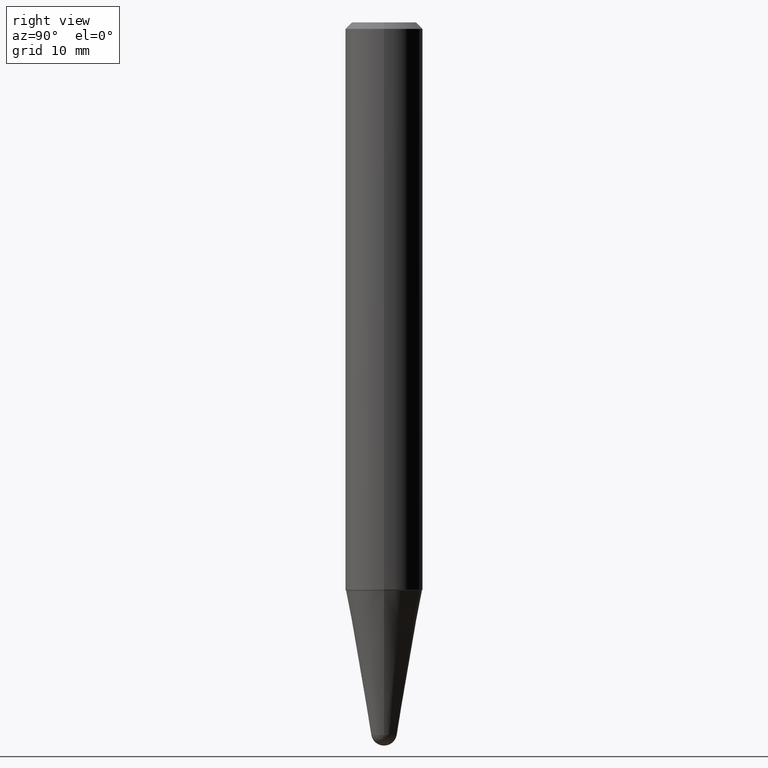
[diagram: clean part render]
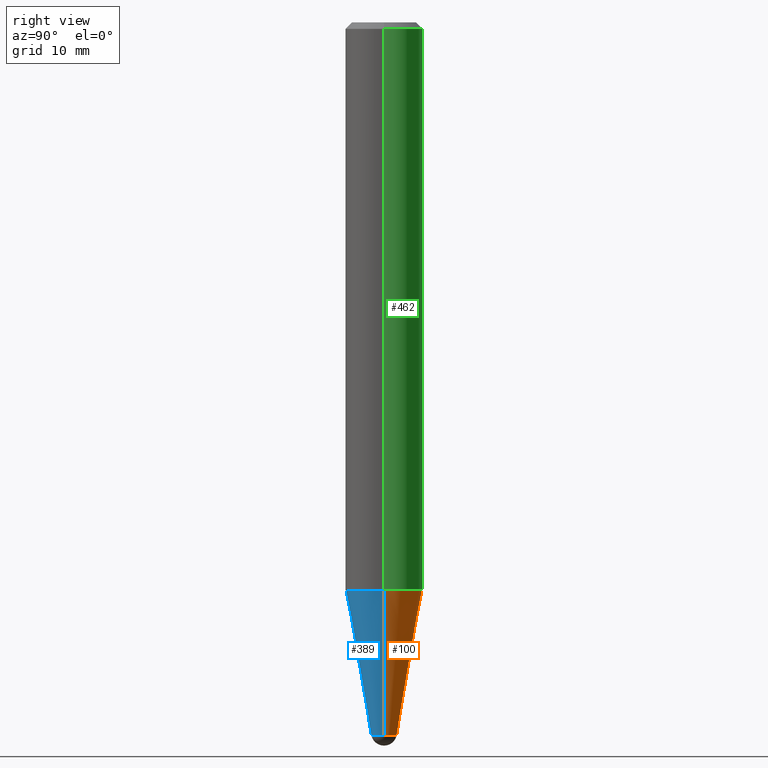
[diagram: same view with three faces highlighted in distinct colors, each labeled with its STEP entity id]
A machine part, right view with three faces highlighted in distinct colors.
Their STEP definitions:

[orange] entity #100 — the highlighted conical surface has half-angle 10 deg.
#1 = EDGE_LOOP ( 'NONE', ( #403, #85, #121, #433, #364 ) ) ;
#23 = CARTESIAN_POINT ( 'NONE',  ( 0.06155048456326323025, -1.246966492451259664E-14, -3.448353011104182908 ) ) ;
#28 = CARTESIAN_POINT ( 'NONE',  ( 8.432839721369867924E-29, -1.203986018801382488E-14, -3.448353011104182908 ) ) ;
#44 = AXIS2_PLACEMENT_3D ( 'NONE', #89, #233, #204 ) ;
#85 = ORIENTED_EDGE ( 'NONE', *, *, #322, .T. ) ;
#87 = VERTEX_POINT ( 'NONE', #240 ) ;
#89 = CARTESIAN_POINT ( 'NONE',  ( 8.432839721369867924E-29, -1.203986018801382488E-14, -3.448353011104182908 ) ) ;
#100 = ADVANCED_FACE ( 'NONE', ( #375 ), #244, .T. ) ;
#108 = CARTESIAN_POINT ( 'NONE',  ( -0.06155048456326323025, -1.160251769112441577E-14, -3.448353011104182908 ) ) ;
#111 = DIRECTION ( 'NONE',  ( -2.445468806185136597E-29, 3.491481338843145583E-15, 1.000000000000000000 ) ) ;
#115 = AXIS2_PLACEMENT_3D ( 'NONE', #167, #111, #183 ) ;
#121 = ORIENTED_EDGE ( 'NONE', *, *, #287, .F. ) ;
#138 = LINE ( 'NONE', #23, #313 ) ;
#144 = CARTESIAN_POINT ( 'NONE',  ( 4.298047364988568595E-16, 0.06155048456325129536, -3.448353011104182908 ) ) ;
#146 = DIRECTION ( 'NONE',  ( -2.445468806185136597E-29, 3.491481338843145583E-15, 1.000000000000000000 ) ) ;
#156 = EDGE_CURVE ( 'NONE', #355, #87, #138, .T. ) ;
#167 = CARTESIAN_POINT ( 'NONE',  ( 8.432839721369867924E-29, -1.203986018801382488E-14, -3.448353011104182908 ) ) ;
#177 = CIRCLE ( 'NONE', #379, 0.06155048456326323025 ) ;
#183 = DIRECTION ( 'NONE',  ( 1.000000000000000000, -6.982962677686276177E-15, 0.000000000000000000 ) ) ;
#197 = VERTEX_POINT ( 'NONE', #269 ) ;
#202 = VERTEX_POINT ( 'NONE', #377 ) ;
#204 = DIRECTION ( 'NONE',  ( 1.000000000000000000, -6.982962677686276177E-15, 0.000000000000000000 ) ) ;
#221 = CARTESIAN_POINT ( 'NONE',  ( 6.725039217009124520E-29, -9.601573681818649859E-15, -2.750000000000000000 ) ) ;
#233 = DIRECTION ( 'NONE',  ( -2.445468806185136597E-29, 3.491481338843145583E-15, 1.000000000000000000 ) ) ;
#240 = CARTESIAN_POINT ( 'NONE',  ( 0.1846889624799289975, -1.089124981379659235E-14, -2.750000000000000000 ) ) ;
#244 = CONICAL_SURFACE ( 'NONE', #44, 0.06155048456326323025, 0.1745329251994330311 ) ;
#249 = DIRECTION ( 'NONE',  ( -0.1736481776669304145, 4.672282404182340767E-15, 0.9848077530122080203 ) ) ;
#251 = EDGE_CURVE ( 'NONE', #430, #202, #411, .T. ) ;
#269 = CARTESIAN_POINT ( 'NONE',  ( -0.1846889624799289975, -8.289279675166815415E-15, -2.750000000000000000 ) ) ;
#275 = AXIS2_PLACEMENT_3D ( 'NONE', #221, #146, #454 ) ;
#287 = EDGE_CURVE ( 'NONE', #87, #197, #315, .T. ) ;
#288 = CARTESIAN_POINT ( 'NONE',  ( 0.06155048456326323025, -1.168045736915459528E-14, -3.448353011104182908 ) ) ;
#313 = VECTOR ( 'NONE', #446, 39.37007874015748854 ) ;
#315 = CIRCLE ( 'NONE', #275, 0.1846889624799289975 ) ;
#320 = DIRECTION ( 'NONE',  ( -2.445468806185136597E-29, 3.491481338843145583E-15, 1.000000000000000000 ) ) ;
#322 = EDGE_CURVE ( 'NONE', #202, #197, #459, .T. ) ;
#355 = VERTEX_POINT ( 'NONE', #288 ) ;
#364 = ORIENTED_EDGE ( 'NONE', *, *, #400, .T. ) ;
#375 = FACE_OUTER_BOUND ( 'NONE', #1, .T. ) ;
#377 = CARTESIAN_POINT ( 'NONE',  ( -0.06155048456326323025, -9.945898683145615595E-15, -3.448353011104182908 ) ) ;
#379 = AXIS2_PLACEMENT_3D ( 'NONE', #28, #320, #457 ) ;
#400 = EDGE_CURVE ( 'NONE', #355, #430, #177, .T. ) ;
#403 = ORIENTED_EDGE ( 'NONE', *, *, #251, .T. ) ;
#404 = VECTOR ( 'NONE', #249, 39.37007874015748854 ) ;
#411 = CIRCLE ( 'NONE', #115, 0.06155048456326323025 ) ;
#430 = VERTEX_POINT ( 'NONE', #144 ) ;
#433 = ORIENTED_EDGE ( 'NONE', *, *, #156, .F. ) ;
#446 = DIRECTION ( 'NONE',  ( 0.1736481776669304145, 2.225859148293765253E-15, 0.9848077530122080203 ) ) ;
#454 = DIRECTION ( 'NONE',  ( 1.000000000000000000, -6.982962677686262766E-15, 0.000000000000000000 ) ) ;
#457 = DIRECTION ( 'NONE',  ( 1.000000000000000000, -6.982962677686276177E-15, 0.000000000000000000 ) ) ;
#459 = LINE ( 'NONE', #108, #404 ) ;

[blue] entity #389 — the highlighted conical surface has half-angle 10 deg.
#7 = CONICAL_SURFACE ( 'NONE', #165, 0.06155048456326323025, 0.1745329251994330311 ) ;
#20 = DIRECTION ( 'NONE',  ( 1.000000000000000000, -6.982962677686276177E-15, 0.000000000000000000 ) ) ;
#23 = CARTESIAN_POINT ( 'NONE',  ( 0.06155048456326323025, -1.246966492451259664E-14, -3.448353011104182908 ) ) ;
#34 = CIRCLE ( 'NONE', #104, 0.06155048456326323025 ) ;
#38 = ORIENTED_EDGE ( 'NONE', *, *, #322, .F. ) ;
#53 = CIRCLE ( 'NONE', #120, 0.06155048456326323025 ) ;
#81 = CIRCLE ( 'NONE', #456, 0.1846889624799289975 ) ;
#87 = VERTEX_POINT ( 'NONE', #240 ) ;
#91 = CARTESIAN_POINT ( 'NONE',  ( -4.373424968893222302E-16, -0.06155048456327496392, -3.448353011104182908 ) ) ;
#102 = DIRECTION ( 'NONE',  ( 1.000000000000000000, -6.982962677686276177E-15, 0.000000000000000000 ) ) ;
#104 = AXIS2_PLACEMENT_3D ( 'NONE', #385, #285, #151 ) ;
#108 = CARTESIAN_POINT ( 'NONE',  ( -0.06155048456326323025, -1.160251769112441577E-14, -3.448353011104182908 ) ) ;
#120 = AXIS2_PLACEMENT_3D ( 'NONE', #170, #212, #20 ) ;
#124 = VERTEX_POINT ( 'NONE', #91 ) ;
#126 = EDGE_LOOP ( 'NONE', ( #38, #359, #367, #195, #192 ) ) ;
#130 = EDGE_CURVE ( 'NONE', #197, #87, #81, .T. ) ;
#138 = LINE ( 'NONE', #23, #313 ) ;
#151 = DIRECTION ( 'NONE',  ( 1.000000000000000000, -6.982962677686276177E-15, 0.000000000000000000 ) ) ;
#156 = EDGE_CURVE ( 'NONE', #355, #87, #138, .T. ) ;
#165 = AXIS2_PLACEMENT_3D ( 'NONE', #319, #453, #102 ) ;
#170 = CARTESIAN_POINT ( 'NONE',  ( 8.432839721369867924E-29, -1.203986018801382488E-14, -3.448353011104182908 ) ) ;
#173 = EDGE_CURVE ( 'NONE', #202, #124, #53, .T. ) ;
#174 = CARTESIAN_POINT ( 'NONE',  ( 6.725039217009124520E-29, -9.601573681818649859E-15, -2.750000000000000000 ) ) ;
#192 = ORIENTED_EDGE ( 'NONE', *, *, #130, .F. ) ;
#195 = ORIENTED_EDGE ( 'NONE', *, *, #156, .T. ) ;
#197 = VERTEX_POINT ( 'NONE', #269 ) ;
#202 = VERTEX_POINT ( 'NONE', #377 ) ;
#212 = DIRECTION ( 'NONE',  ( -2.445468806185136597E-29, 3.491481338843145583E-15, 1.000000000000000000 ) ) ;
#234 = DIRECTION ( 'NONE',  ( 1.000000000000000000, -6.982962677686262766E-15, 0.000000000000000000 ) ) ;
#240 = CARTESIAN_POINT ( 'NONE',  ( 0.1846889624799289975, -1.089124981379659235E-14, -2.750000000000000000 ) ) ;
#249 = DIRECTION ( 'NONE',  ( -0.1736481776669304145, 4.672282404182340767E-15, 0.9848077530122080203 ) ) ;
#269 = CARTESIAN_POINT ( 'NONE',  ( -0.1846889624799289975, -8.289279675166815415E-15, -2.750000000000000000 ) ) ;
#285 = DIRECTION ( 'NONE',  ( -2.445468806185136597E-29, 3.491481338843145583E-15, 1.000000000000000000 ) ) ;
#288 = CARTESIAN_POINT ( 'NONE',  ( 0.06155048456326323025, -1.168045736915459528E-14, -3.448353011104182908 ) ) ;
#313 = VECTOR ( 'NONE', #446, 39.37007874015748854 ) ;
#319 = CARTESIAN_POINT ( 'NONE',  ( 8.432839721369867924E-29, -1.203986018801382488E-14, -3.448353011104182908 ) ) ;
#322 = EDGE_CURVE ( 'NONE', #202, #197, #459, .T. ) ;
#353 = EDGE_CURVE ( 'NONE', #124, #355, #34, .T. ) ;
#355 = VERTEX_POINT ( 'NONE', #288 ) ;
#359 = ORIENTED_EDGE ( 'NONE', *, *, #173, .T. ) ;
#367 = ORIENTED_EDGE ( 'NONE', *, *, #353, .T. ) ;
#377 = CARTESIAN_POINT ( 'NONE',  ( -0.06155048456326323025, -9.945898683145615595E-15, -3.448353011104182908 ) ) ;
#385 = CARTESIAN_POINT ( 'NONE',  ( 8.432839721369867924E-29, -1.203986018801382488E-14, -3.448353011104182908 ) ) ;
#389 = ADVANCED_FACE ( 'NONE', ( #418 ), #7, .T. ) ;
#404 = VECTOR ( 'NONE', #249, 39.37007874015748854 ) ;
#417 = DIRECTION ( 'NONE',  ( -2.445468806185136597E-29, 3.491481338843145583E-15, 1.000000000000000000 ) ) ;
#418 = FACE_OUTER_BOUND ( 'NONE', #126, .T. ) ;
#446 = DIRECTION ( 'NONE',  ( 0.1736481776669304145, 2.225859148293765253E-15, 0.9848077530122080203 ) ) ;
#453 = DIRECTION ( 'NONE',  ( -2.445468806185136597E-29, 3.491481338843145583E-15, 1.000000000000000000 ) ) ;
#456 = AXIS2_PLACEMENT_3D ( 'NONE', #174, #417, #234 ) ;
#459 = LINE ( 'NONE', #108, #404 ) ;

[green] entity #462 — the highlighted cylindrical surface (partial cylindrical patch) has radius 4.7625 mm, axis along (-0, 0, 1).
#13 = VERTEX_POINT ( 'NONE', #128 ) ;
#24 = LINE ( 'NONE', #314, #49 ) ;
#27 = DIRECTION ( 'NONE',  ( 1.000000000000000000, -6.982962677686269866E-15, 0.000000000000000000 ) ) ;
#30 = CIRCLE ( 'NONE', #297, 0.1874999999999999722 ) ;
#37 = CYLINDRICAL_SURFACE ( 'NONE', #97, 0.1875000000000001943 ) ;
#41 = DIRECTION ( 'NONE',  ( 1.000000000000000000, -6.982962677686265922E-15, 4.852736867747361162E-29 ) ) ;
#42 = ORIENTED_EDGE ( 'NONE', *, *, #139, .T. ) ;
#48 = ORIENTED_EDGE ( 'NONE', *, *, #339, .T. ) ;
#49 = VECTOR ( 'NONE', #241, 39.37007874015748143 ) ;
#52 = LINE ( 'NONE', #172, #449 ) ;
#65 = AXIS2_PLACEMENT_3D ( 'NONE', #387, #324, #27 ) ;
#67 = CARTESIAN_POINT ( 'NONE',  ( -1.450455682483482035E-44, 2.070866303999251778E-30, 5.931196827434296760E-16 ) ) ;
#94 = CARTESIAN_POINT ( 'NONE',  ( 0.1875000000000003608, -1.089557328910965200E-14, -2.745616217504903922 ) ) ;
#97 = AXIS2_PLACEMENT_3D ( 'NONE', #67, #424, #41 ) ;
#99 = DIRECTION ( 'NONE',  ( -2.445468806185136877E-29, 3.491481338843145188E-15, 1.000000000000000000 ) ) ;
#128 = CARTESIAN_POINT ( 'NONE',  ( 0.1874999999999999722, -1.418414293905023123E-15, -0.03125000000000003469 ) ) ;
#137 = DIRECTION ( 'NONE',  ( 1.000000000000000000, -6.982962677686266711E-15, 0.000000000000000000 ) ) ;
#139 = EDGE_CURVE ( 'NONE', #394, #226, #52, .T. ) ;
#142 = EDGE_CURVE ( 'NONE', #163, #13, #24, .T. ) ;
#158 = EDGE_LOOP ( 'NONE', ( #48, #42, #363, #439 ) ) ;
#163 = VERTEX_POINT ( 'NONE', #94 ) ;
#172 = CARTESIAN_POINT ( 'NONE',  ( -0.1875000000000001943, 1.332267629550191398E-15, 5.931196827434205055E-16 ) ) ;
#214 = CARTESIAN_POINT ( 'NONE',  ( -0.1875000000000003608, -8.254000157493284415E-15, -2.745616217504903922 ) ) ;
#226 = VERTEX_POINT ( 'NONE', #268 ) ;
#230 = EDGE_CURVE ( 'NONE', #13, #226, #30, .T. ) ;
#241 = DIRECTION ( 'NONE',  ( -2.445468806185136877E-29, 3.491481338843145188E-15, 1.000000000000000000 ) ) ;
#268 = CARTESIAN_POINT ( 'NONE',  ( -0.1874999999999999722, -3.515420659890970467E-15, -0.03125000000000003469 ) ) ;
#282 = FACE_OUTER_BOUND ( 'NONE', #158, .T. ) ;
#297 = AXIS2_PLACEMENT_3D ( 'NONE', #312, #448, #137 ) ;
#312 = CARTESIAN_POINT ( 'NONE',  ( 7.642090019328561499E-31, -1.091087918388484350E-16, -0.03125000000000003469 ) ) ;
#314 = CARTESIAN_POINT ( 'NONE',  ( 0.1875000000000001943, -1.309305502066174022E-15, 5.931196827434387479E-16 ) ) ;
#317 = CIRCLE ( 'NONE', #65, 0.1875000000000003608 ) ;
#324 = DIRECTION ( 'NONE',  ( -2.445468806185136597E-29, 3.491481338843145583E-15, 1.000000000000000000 ) ) ;
#339 = EDGE_CURVE ( 'NONE', #163, #394, #317, .T. ) ;
#363 = ORIENTED_EDGE ( 'NONE', *, *, #230, .F. ) ;
#387 = CARTESIAN_POINT ( 'NONE',  ( 6.714318813664267806E-29, -9.586267787043473841E-15, -2.745616217504903922 ) ) ;
#394 = VERTEX_POINT ( 'NONE', #214 ) ;
#424 = DIRECTION ( 'NONE',  ( -2.445468806185136597E-29, 3.491481338843145583E-15, 1.000000000000000000 ) ) ;
#439 = ORIENTED_EDGE ( 'NONE', *, *, #142, .F. ) ;
#448 = DIRECTION ( 'NONE',  ( -2.445468806185136597E-29, 3.491481338843145583E-15, 1.000000000000000000 ) ) ;
#449 = VECTOR ( 'NONE', #99, 39.37007874015748143 ) ;
#462 = ADVANCED_FACE ( 'NONE', ( #282 ), #37, .T. ) ;